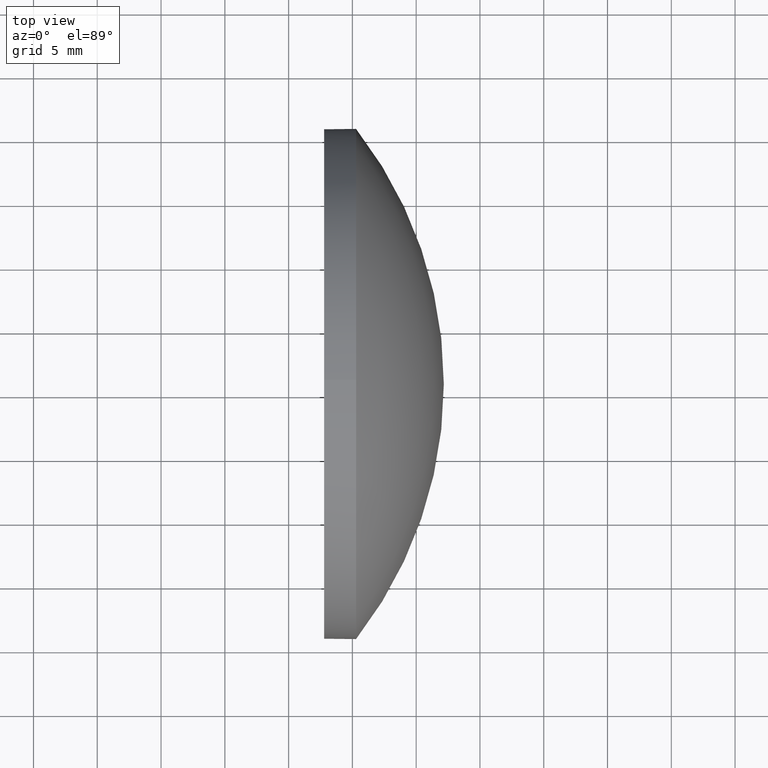
[diagram: clean part render]
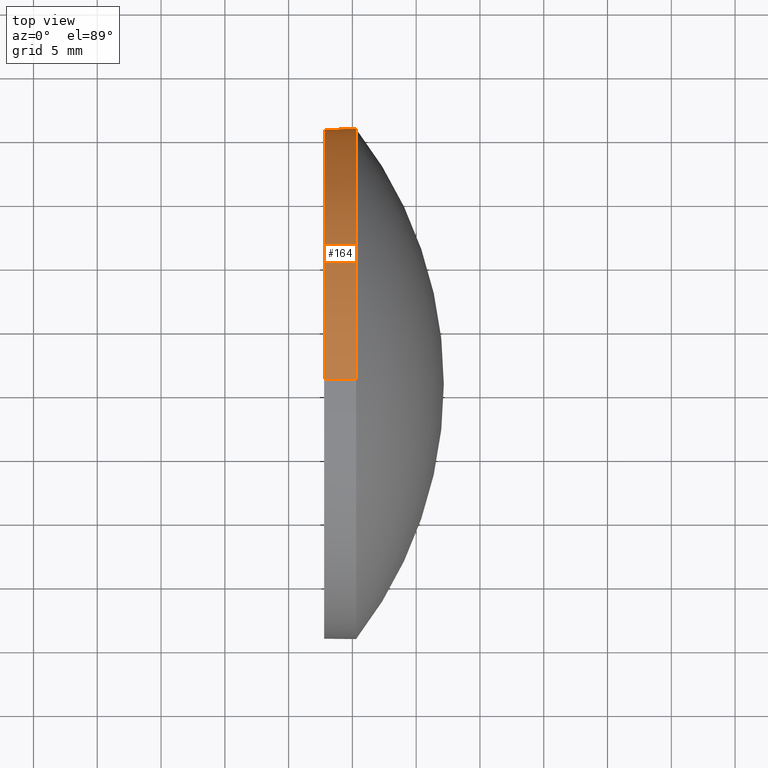
[diagram: same view with one face highlighted and labeled with its STEP entity id]
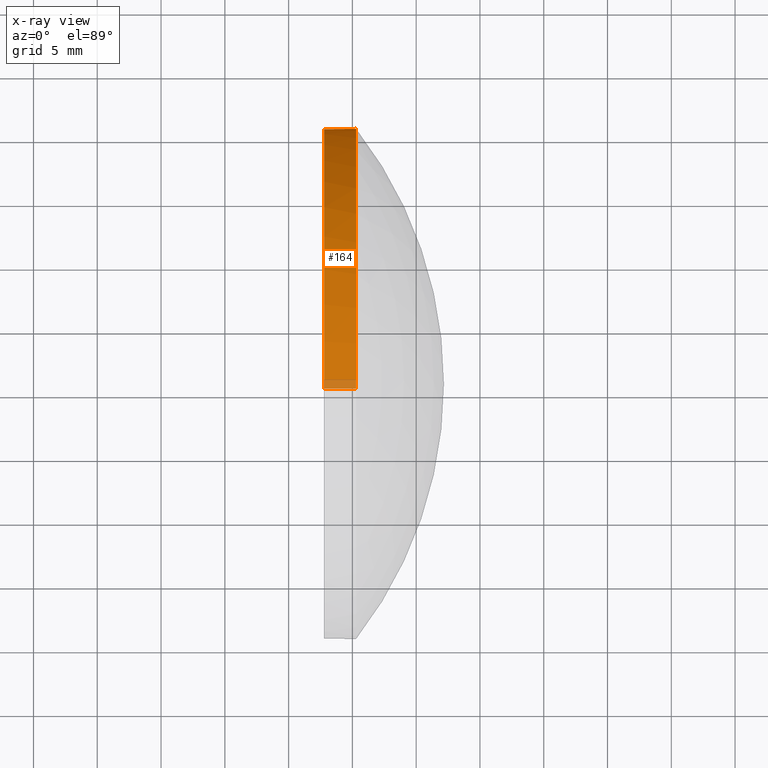
[diagram: x-ray of the same camera — body ghosted, the highlighted face saturated]
A machine part, top view. The second image highlights one B-rep face of the part: STEP entity #164.
The next image is the same camera in x-ray: the body ghosted, the highlighted face saturated — about 3% of this face is hidden behind the body in this view.
In plain terms, the highlighted cylindrical surface (partial cylindrical patch) has radius 20 mm, axis along (-1, -0, -0).
Its self-contained STEP definition (entity closure, byte-faithful):
#1 = VERTEX_POINT ( 'NONE', #58 ) ;
#3 = ORIENTED_EDGE ( 'NONE', *, *, #61, .T. ) ;
#5 = CARTESIAN_POINT ( 'NONE',  ( 472.7872802130123100, 140.7123955263322200, 19.99999999999998900 ) ) ;
#13 = EDGE_CURVE ( 'NONE', #1, #157, #41, .T. ) ;
#30 = DIRECTION ( 'NONE',  ( -1.000000000000000000, -0.0000000000000000000, -0.0000000000000000000 ) ) ;
#32 = CARTESIAN_POINT ( 'NONE',  ( 472.7872802130123100, 140.7123955263322200, 0.0000000000000000000 ) ) ;
#33 = LINE ( 'NONE', #38, #179 ) ;
#34 = DIRECTION ( 'NONE',  ( -1.000000000000000000, -0.0000000000000000000, -0.0000000000000000000 ) ) ;
#38 = CARTESIAN_POINT ( 'NONE',  ( 463.2807828932391800, 140.7123955263322200, -19.99999999999998900 ) ) ;
#40 = EDGE_LOOP ( 'NONE', ( #3, #146, #172, #145, #71 ) ) ;
#41 = CIRCLE ( 'NONE', #105, 19.99999999999998900 ) ;
#42 = VERTEX_POINT ( 'NONE', #5 ) ;
#46 = DIRECTION ( 'NONE',  ( -1.000000000000000000, -0.0000000000000000000, -0.0000000000000000000 ) ) ;
#47 = DIRECTION ( 'NONE',  ( 0.0000000000000000000, 0.0000000000000000000, 1.000000000000000000 ) ) ;
#52 = CARTESIAN_POINT ( 'NONE',  ( 472.7872802130123100, 140.7123955263322200, -19.99999999999998900 ) ) ;
#58 = CARTESIAN_POINT ( 'NONE',  ( 475.2872802130123100, 140.7123955263322200, 19.99999999999998900 ) ) ;
#60 = EDGE_CURVE ( 'NONE', #42, #186, #184, .T. ) ;
#61 = EDGE_CURVE ( 'NONE', #157, #143, #84, .T. ) ;
#71 = ORIENTED_EDGE ( 'NONE', *, *, #13, .T. ) ;
#74 = AXIS2_PLACEMENT_3D ( 'NONE', #32, #46, #76 ) ;
#76 = DIRECTION ( 'NONE',  ( 0.0000000000000000000, 0.0000000000000000000, 1.000000000000000000 ) ) ;
#83 = DIRECTION ( 'NONE',  ( -1.000000000000000000, -0.0000000000000000000, -0.0000000000000000000 ) ) ;
#84 = CIRCLE ( 'NONE', #88, 19.99999999999998900 ) ;
#88 = AXIS2_PLACEMENT_3D ( 'NONE', #149, #168, #47 ) ;
#92 = DIRECTION ( 'NONE',  ( -1.000000000000000000, -0.0000000000000000000, -0.0000000000000000000 ) ) ;
#94 = EDGE_CURVE ( 'NONE', #143, #186, #33, .T. ) ;
#105 = AXIS2_PLACEMENT_3D ( 'NONE', #166, #30, #110 ) ;
#110 = DIRECTION ( 'NONE',  ( 0.0000000000000000000, 0.0000000000000000000, 1.000000000000000000 ) ) ;
#113 = DIRECTION ( 'NONE',  ( 0.0000000000000000000, 0.0000000000000000000, 1.000000000000000000 ) ) ;
#114 = CARTESIAN_POINT ( 'NONE',  ( 463.2807828932391800, 140.7123955263322200, 19.99999999999998900 ) ) ;
#123 = AXIS2_PLACEMENT_3D ( 'NONE', #178, #92, #113 ) ;
#126 = CARTESIAN_POINT ( 'NONE',  ( 475.2872802130123100, 140.7123955263322200, -19.99999999999998900 ) ) ;
#129 = FACE_OUTER_BOUND ( 'NONE', #40, .T. ) ;
#131 = CARTESIAN_POINT ( 'NONE',  ( 475.2872802130123100, 160.7123955263322200, 0.0000000000000000000 ) ) ;
#133 = VECTOR ( 'NONE', #34, 1000.000000000000000 ) ;
#143 = VERTEX_POINT ( 'NONE', #126 ) ;
#145 = ORIENTED_EDGE ( 'NONE', *, *, #167, .F. ) ;
#146 = ORIENTED_EDGE ( 'NONE', *, *, #94, .T. ) ;
#149 = CARTESIAN_POINT ( 'NONE',  ( 475.2872802130123100, 140.7123955263322200, 0.0000000000000000000 ) ) ;
#157 = VERTEX_POINT ( 'NONE', #131 ) ;
#159 = LINE ( 'NONE', #114, #133 ) ;
#164 = ADVANCED_FACE ( 'NONE', ( #129 ), #176, .T. ) ;
#166 = CARTESIAN_POINT ( 'NONE',  ( 475.2872802130123100, 140.7123955263322200, 0.0000000000000000000 ) ) ;
#167 = EDGE_CURVE ( 'NONE', #1, #42, #159, .T. ) ;
#168 = DIRECTION ( 'NONE',  ( -1.000000000000000000, -0.0000000000000000000, -0.0000000000000000000 ) ) ;
#172 = ORIENTED_EDGE ( 'NONE', *, *, #60, .F. ) ;
#176 = CYLINDRICAL_SURFACE ( 'NONE', #123, 19.99999999999998900 ) ;
#178 = CARTESIAN_POINT ( 'NONE',  ( 463.2807828932391800, 140.7123955263322200, 0.0000000000000000000 ) ) ;
#179 = VECTOR ( 'NONE', #83, 1000.000000000000000 ) ;
#184 = CIRCLE ( 'NONE', #74, 19.99999999999998900 ) ;
#186 = VERTEX_POINT ( 'NONE', #52 ) ;